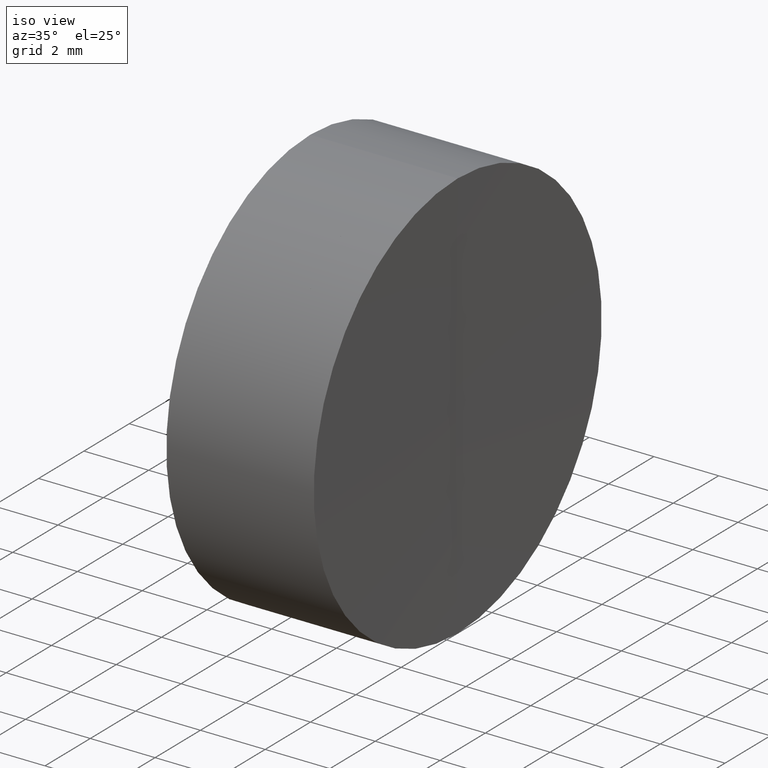
[diagram: clean part render]
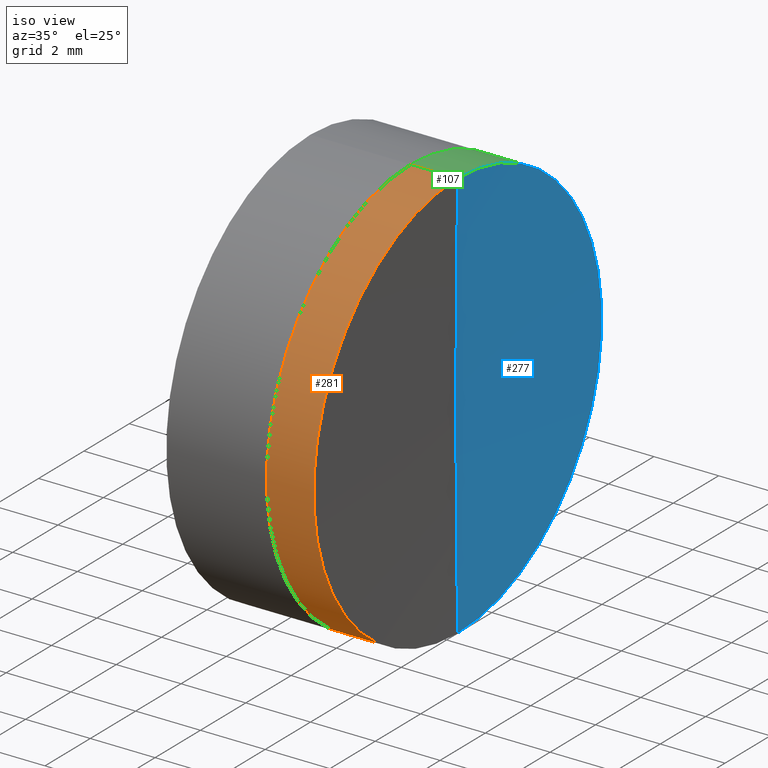
[diagram: same view with three faces highlighted in distinct colors, each labeled with its STEP entity id]
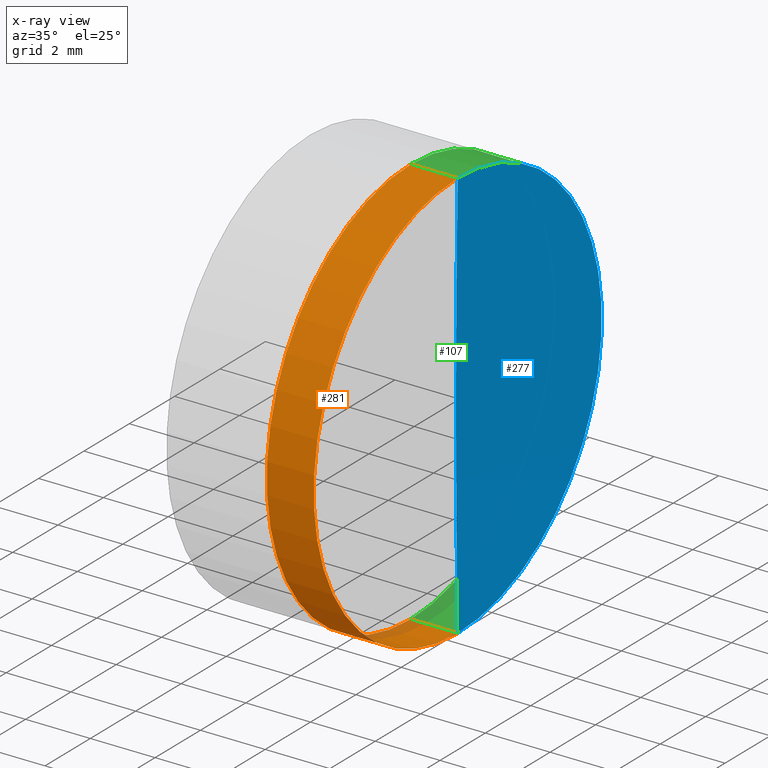
[diagram: x-ray of the same camera — body ghosted, the three highlighted faces saturated]
A machine part, iso view with three faces highlighted in distinct colors.
The next image is the same camera in x-ray (body ghosted, the three faces saturated) — at least one of them is partly hidden behind the body in this view.
Their STEP definitions:

[orange] entity #281 — the highlighted cylindrical surface (partial cylindrical patch) has radius 6.35 mm, axis along (-1, -0, -0).
#2 = DIRECTION ( 'NONE',  ( 0.0000000000000000000, 0.0000000000000000000, 1.000000000000000000 ) ) ;
#5 = DIRECTION ( 'NONE',  ( -1.000000000000000000, -0.0000000000000000000, -0.0000000000000000000 ) ) ;
#9 = VERTEX_POINT ( 'NONE', #151 ) ;
#12 = CARTESIAN_POINT ( 'NONE',  ( 225.7919910479895400, 7.776507174585693100E-016, -6.350000000000000500 ) ) ;
#17 = ORIENTED_EDGE ( 'NONE', *, *, #71, .F. ) ;
#19 = CARTESIAN_POINT ( 'NONE',  ( 230.3461404943394100, 7.776507174585693100E-016, -6.349999999999999600 ) ) ;
#21 = EDGE_CURVE ( 'NONE', #259, #157, #195, .T. ) ;
#23 = VERTEX_POINT ( 'NONE', #173 ) ;
#71 = EDGE_CURVE ( 'NONE', #259, #9, #323, .T. ) ;
#73 = CIRCLE ( 'NONE', #198, 6.350000000000001400 ) ;
#96 = CARTESIAN_POINT ( 'NONE',  ( 230.3461404943394100, 0.0000000000000000000, 6.349999999999999600 ) ) ;
#99 = ORIENTED_EDGE ( 'NONE', *, *, #21, .T. ) ;
#106 = LINE ( 'NONE', #200, #283 ) ;
#116 = DIRECTION ( 'NONE',  ( 0.0000000000000000000, 0.0000000000000000000, 1.000000000000000000 ) ) ;
#132 = EDGE_LOOP ( 'NONE', ( #17, #99, #334, #276 ) ) ;
#146 = EDGE_CURVE ( 'NONE', #9, #23, #73, .T. ) ;
#148 = DIRECTION ( 'NONE',  ( -1.000000000000000000, -0.0000000000000000000, -0.0000000000000000000 ) ) ;
#151 = CARTESIAN_POINT ( 'NONE',  ( 228.8920918545435900, 7.776507174585674400E-016, -6.349999999999985400 ) ) ;
#152 = AXIS2_PLACEMENT_3D ( 'NONE', #184, #148, #186 ) ;
#157 = VERTEX_POINT ( 'NONE', #96 ) ;
#173 = CARTESIAN_POINT ( 'NONE',  ( 228.8920918545435900, 0.0000000000000000000, 6.349999999999985400 ) ) ;
#184 = CARTESIAN_POINT ( 'NONE',  ( 225.7919910479895400, 0.0000000000000000000, 0.0000000000000000000 ) ) ;
#186 = DIRECTION ( 'NONE',  ( 0.0000000000000000000, 0.0000000000000000000, 1.000000000000000000 ) ) ;
#191 = VECTOR ( 'NONE', #237, 1000.000000000000000 ) ;
#195 = CIRCLE ( 'NONE', #224, 6.349999999999999600 ) ;
#198 = AXIS2_PLACEMENT_3D ( 'NONE', #331, #219, #116 ) ;
#200 = CARTESIAN_POINT ( 'NONE',  ( 225.7919910479895400, 0.0000000000000000000, 6.350000000000000500 ) ) ;
#202 = FACE_OUTER_BOUND ( 'NONE', #132, .T. ) ;
#214 = EDGE_CURVE ( 'NONE', #157, #23, #106, .T. ) ;
#219 = DIRECTION ( 'NONE',  ( -1.000000000000000000, -0.0000000000000000000, -0.0000000000000000000 ) ) ;
#224 = AXIS2_PLACEMENT_3D ( 'NONE', #272, #5, #2 ) ;
#237 = DIRECTION ( 'NONE',  ( -1.000000000000000000, -0.0000000000000000000, -0.0000000000000000000 ) ) ;
#258 = CYLINDRICAL_SURFACE ( 'NONE', #152, 6.350000000000000500 ) ;
#259 = VERTEX_POINT ( 'NONE', #19 ) ;
#272 = CARTESIAN_POINT ( 'NONE',  ( 230.3461404943394100, 0.0000000000000000000, 0.0000000000000000000 ) ) ;
#276 = ORIENTED_EDGE ( 'NONE', *, *, #146, .F. ) ;
#281 = ADVANCED_FACE ( 'NONE', ( #202 ), #258, .T. ) ;
#283 = VECTOR ( 'NONE', #296, 1000.000000000000000 ) ;
#296 = DIRECTION ( 'NONE',  ( -1.000000000000000000, -0.0000000000000000000, -0.0000000000000000000 ) ) ;
#323 = LINE ( 'NONE', #12, #191 ) ;
#331 = CARTESIAN_POINT ( 'NONE',  ( 228.8920918545435900, 0.0000000000000000000, 0.0000000000000000000 ) ) ;
#334 = ORIENTED_EDGE ( 'NONE', *, *, #214, .T. ) ;

[blue] entity #277 — the highlighted spherical surface has radius 372.7 mm.
#1 = CARTESIAN_POINT ( 'NONE',  ( 230.3461404943394100, 0.0000000000000000000, 0.0000000000000000000 ) ) ;
#14 = DIRECTION ( 'NONE',  ( 0.0000000000000000000, 1.224646799147353000E-016, -1.000000000000000000 ) ) ;
#19 = CARTESIAN_POINT ( 'NONE',  ( 230.3461404943394100, 7.776507174585693100E-016, -6.349999999999999600 ) ) ;
#20 = EDGE_CURVE ( 'NONE', #157, #259, #55, .T. ) ;
#39 = CARTESIAN_POINT ( 'NONE',  ( 602.9920414512665700, 0.0000000000000000000, 0.0000000000000000000 ) ) ;
#44 = DIRECTION ( 'NONE',  ( 0.0000000000000000000, 0.0000000000000000000, 1.000000000000000000 ) ) ;
#46 = DIRECTION ( 'NONE',  ( 0.0000000000000000000, 0.0000000000000000000, -1.000000000000000000 ) ) ;
#51 = ORIENTED_EDGE ( 'NONE', *, *, #20, .F. ) ;
#55 = CIRCLE ( 'NONE', #309, 6.349999999999999600 ) ;
#58 = EDGE_LOOP ( 'NONE', ( #51, #108, #137 ) ) ;
#66 = CARTESIAN_POINT ( 'NONE',  ( 602.9920414512665700, 0.0000000000000000000, 0.0000000000000000000 ) ) ;
#70 = DIRECTION ( 'NONE',  ( -0.0000000000000000000, -1.000000000000000000, -0.0000000000000000000 ) ) ;
#92 = AXIS2_PLACEMENT_3D ( 'NONE', #102, #70, #46 ) ;
#96 = CARTESIAN_POINT ( 'NONE',  ( 230.3461404943394100, 0.0000000000000000000, 6.349999999999999600 ) ) ;
#102 = CARTESIAN_POINT ( 'NONE',  ( 602.9920414512665700, 0.0000000000000000000, 0.0000000000000000000 ) ) ;
#108 = ORIENTED_EDGE ( 'NONE', *, *, #317, .T. ) ;
#117 = CIRCLE ( 'NONE', #143, 372.6999999999999900 ) ;
#134 = DIRECTION ( 'NONE',  ( 0.0000000000000000000, 0.0000000000000000000, 1.000000000000000000 ) ) ;
#137 = ORIENTED_EDGE ( 'NONE', *, *, #285, .F. ) ;
#143 = AXIS2_PLACEMENT_3D ( 'NONE', #66, #225, #44 ) ;
#157 = VERTEX_POINT ( 'NONE', #96 ) ;
#206 = DIRECTION ( 'NONE',  ( 0.0000000000000000000, -1.000000000000000000, -1.224646799147353200E-016 ) ) ;
#208 = CARTESIAN_POINT ( 'NONE',  ( 230.2920414512666400, 0.0000000000000000000, -2.282129310211092400E-014 ) ) ;
#225 = DIRECTION ( 'NONE',  ( 0.0000000000000000000, 1.000000000000000000, -0.0000000000000000000 ) ) ;
#240 = DIRECTION ( 'NONE',  ( -1.000000000000000000, -0.0000000000000000000, -0.0000000000000000000 ) ) ;
#259 = VERTEX_POINT ( 'NONE', #19 ) ;
#277 = ADVANCED_FACE ( 'NONE', ( #295 ), #314, .F. ) ;
#285 = EDGE_CURVE ( 'NONE', #259, #302, #117, .T. ) ;
#295 = FACE_OUTER_BOUND ( 'NONE', #58, .T. ) ;
#302 = VERTEX_POINT ( 'NONE', #208 ) ;
#309 = AXIS2_PLACEMENT_3D ( 'NONE', #1, #240, #134 ) ;
#314 = SPHERICAL_SURFACE ( 'NONE', #92, 372.6999999999999900 ) ;
#317 = EDGE_CURVE ( 'NONE', #157, #302, #341, .T. ) ;
#332 = AXIS2_PLACEMENT_3D ( 'NONE', #39, #206, #14 ) ;
#341 = CIRCLE ( 'NONE', #332, 372.6999999999999900 ) ;

[green] entity #107 — the highlighted cylindrical surface (partial cylindrical patch) has radius 6.35 mm, axis along (-1, -0, -0).
#1 = CARTESIAN_POINT ( 'NONE',  ( 230.3461404943394100, 0.0000000000000000000, 0.0000000000000000000 ) ) ;
#9 = VERTEX_POINT ( 'NONE', #151 ) ;
#12 = CARTESIAN_POINT ( 'NONE',  ( 225.7919910479895400, 7.776507174585693100E-016, -6.350000000000000500 ) ) ;
#19 = CARTESIAN_POINT ( 'NONE',  ( 230.3461404943394100, 7.776507174585693100E-016, -6.349999999999999600 ) ) ;
#20 = EDGE_CURVE ( 'NONE', #157, #259, #55, .T. ) ;
#23 = VERTEX_POINT ( 'NONE', #173 ) ;
#45 = DIRECTION ( 'NONE',  ( -1.000000000000000000, -0.0000000000000000000, -0.0000000000000000000 ) ) ;
#55 = CIRCLE ( 'NONE', #309, 6.349999999999999600 ) ;
#59 = FACE_OUTER_BOUND ( 'NONE', #78, .T. ) ;
#63 = CARTESIAN_POINT ( 'NONE',  ( 228.8920918545435900, 0.0000000000000000000, 0.0000000000000000000 ) ) ;
#71 = EDGE_CURVE ( 'NONE', #259, #9, #323, .T. ) ;
#78 = EDGE_LOOP ( 'NONE', ( #232, #269, #147, #97 ) ) ;
#96 = CARTESIAN_POINT ( 'NONE',  ( 230.3461404943394100, 0.0000000000000000000, 6.349999999999999600 ) ) ;
#97 = ORIENTED_EDGE ( 'NONE', *, *, #214, .F. ) ;
#106 = LINE ( 'NONE', #200, #283 ) ;
#107 = ADVANCED_FACE ( 'NONE', ( #59 ), #265, .T. ) ;
#134 = DIRECTION ( 'NONE',  ( 0.0000000000000000000, 0.0000000000000000000, 1.000000000000000000 ) ) ;
#147 = ORIENTED_EDGE ( 'NONE', *, *, #190, .F. ) ;
#151 = CARTESIAN_POINT ( 'NONE',  ( 228.8920918545435900, 7.776507174585674400E-016, -6.349999999999985400 ) ) ;
#157 = VERTEX_POINT ( 'NONE', #96 ) ;
#173 = CARTESIAN_POINT ( 'NONE',  ( 228.8920918545435900, 0.0000000000000000000, 6.349999999999985400 ) ) ;
#178 = DIRECTION ( 'NONE',  ( 0.0000000000000000000, 0.0000000000000000000, 1.000000000000000000 ) ) ;
#187 = DIRECTION ( 'NONE',  ( -1.000000000000000000, -0.0000000000000000000, -0.0000000000000000000 ) ) ;
#190 = EDGE_CURVE ( 'NONE', #23, #9, #260, .T. ) ;
#191 = VECTOR ( 'NONE', #237, 1000.000000000000000 ) ;
#200 = CARTESIAN_POINT ( 'NONE',  ( 225.7919910479895400, 0.0000000000000000000, 6.350000000000000500 ) ) ;
#214 = EDGE_CURVE ( 'NONE', #157, #23, #106, .T. ) ;
#229 = DIRECTION ( 'NONE',  ( 0.0000000000000000000, 0.0000000000000000000, 1.000000000000000000 ) ) ;
#232 = ORIENTED_EDGE ( 'NONE', *, *, #20, .T. ) ;
#237 = DIRECTION ( 'NONE',  ( -1.000000000000000000, -0.0000000000000000000, -0.0000000000000000000 ) ) ;
#240 = DIRECTION ( 'NONE',  ( -1.000000000000000000, -0.0000000000000000000, -0.0000000000000000000 ) ) ;
#259 = VERTEX_POINT ( 'NONE', #19 ) ;
#260 = CIRCLE ( 'NONE', #311, 6.350000000000001400 ) ;
#265 = CYLINDRICAL_SURFACE ( 'NONE', #346, 6.350000000000000500 ) ;
#269 = ORIENTED_EDGE ( 'NONE', *, *, #71, .T. ) ;
#283 = VECTOR ( 'NONE', #296, 1000.000000000000000 ) ;
#296 = DIRECTION ( 'NONE',  ( -1.000000000000000000, -0.0000000000000000000, -0.0000000000000000000 ) ) ;
#305 = CARTESIAN_POINT ( 'NONE',  ( 225.7919910479895400, 0.0000000000000000000, 0.0000000000000000000 ) ) ;
#309 = AXIS2_PLACEMENT_3D ( 'NONE', #1, #240, #134 ) ;
#311 = AXIS2_PLACEMENT_3D ( 'NONE', #63, #45, #178 ) ;
#323 = LINE ( 'NONE', #12, #191 ) ;
#346 = AXIS2_PLACEMENT_3D ( 'NONE', #305, #187, #229 ) ;